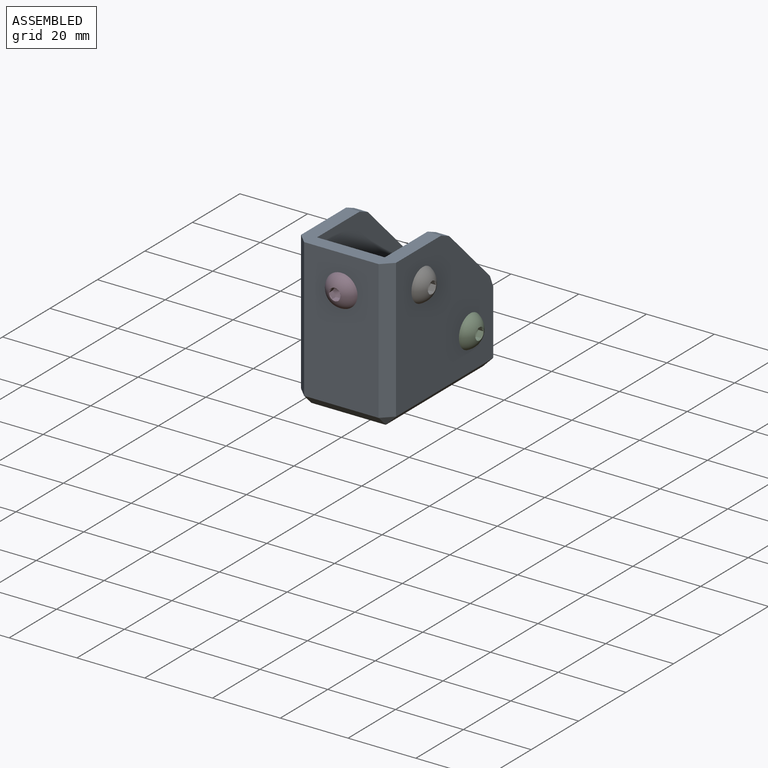
[diagram: assembled view]
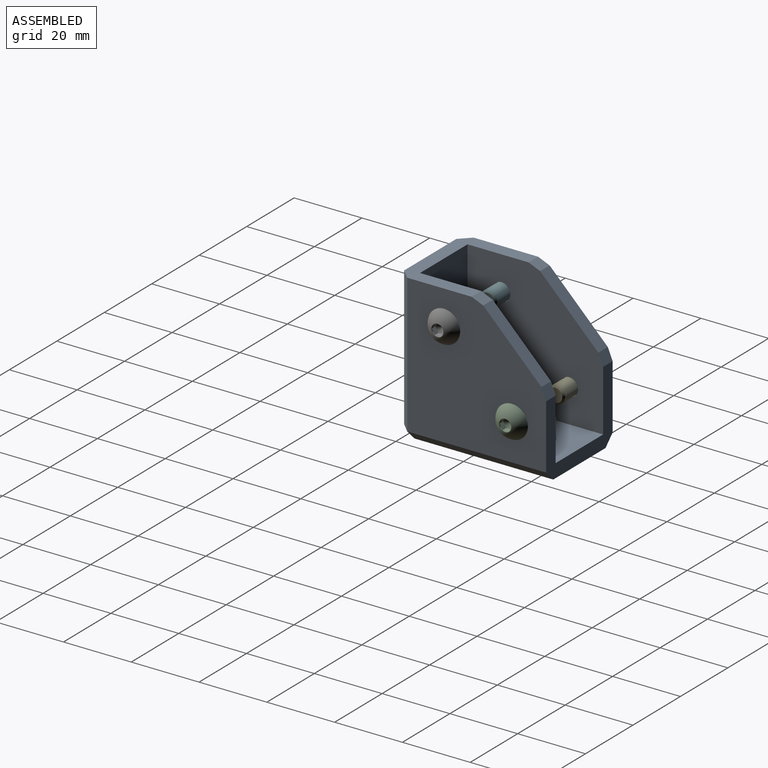
[diagram: assembled view, second angle]
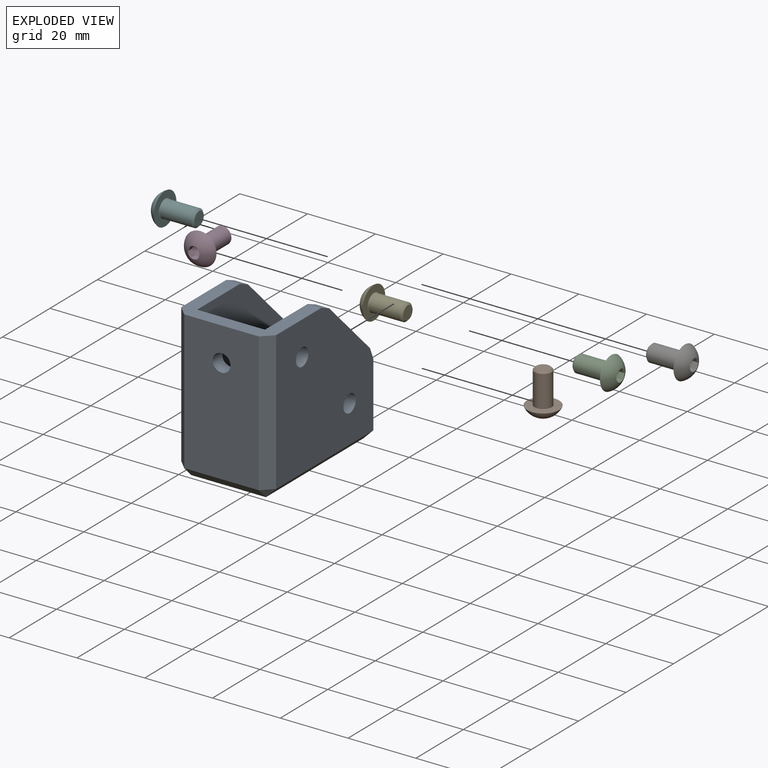
[diagram: exploded view]
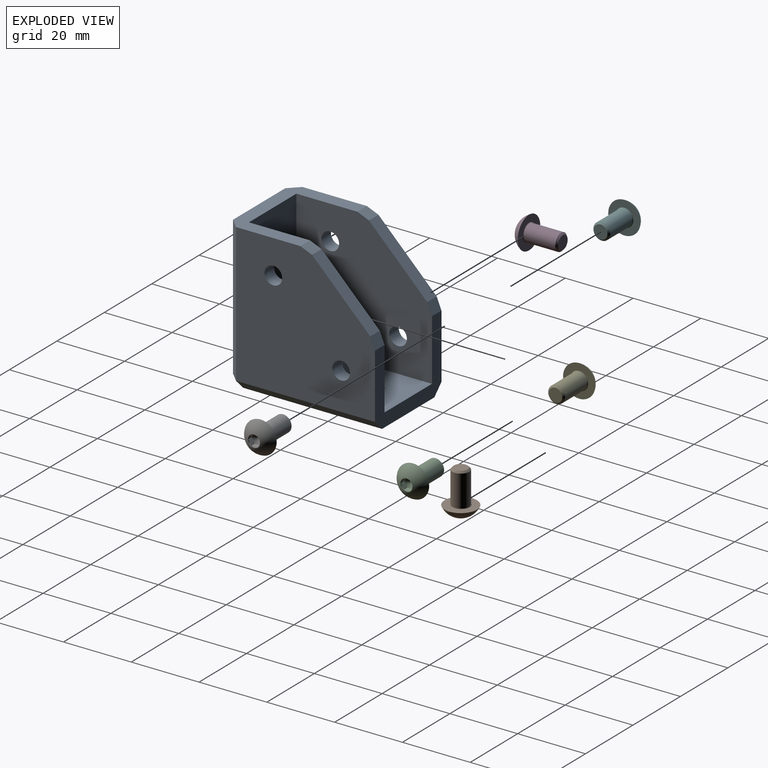
[diagram: exploded view, second angle]
FCSTD DOCUMENT  (FreeCAD 1.0R39285 (Git))
Label: L-mount
License: All rights reserved
objects: App::Link×7, App::FeaturePython×7, Sketcher::SketchObject×4, PartDesign::Pad×4, PartDesign::Chamfer×2, PartDesign::Body×1, Part::FeaturePython×1, Assembly::JointGroup×1, Assembly::AssemblyObject×1
note: 28 computed .brp shape members not serialized (recipe doc carries the construction recipe); baked Part::Feature solids carry a one-line shape summary decoded from their .brp

FEATURE [Sketcher::SketchObject] Sketch
  ArcFitTolerance = 1e-06
  AttachmentSupport = -> [XY_Plane]
  FullyConstrained = true
  MakeInternals = false
  MapMode = 5
  sketch-geometry (7):
    g0: LineSegment StartX=0 StartY=0 StartZ=0 EndX=28 EndY=0 EndZ=0
    g1: LineSegment StartX=28 StartY=0 StartZ=0 EndX=28 EndY=44 EndZ=0
    g2: LineSegment StartX=28 StartY=44 StartZ=0 EndX=0 EndY=44 EndZ=0
    g3: LineSegment StartX=0 StartY=44 StartZ=0 EndX=0 EndY=0 EndZ=0
    g4: LineSegment [constr] StartX=28 StartY=44 StartZ=0 EndX=14 EndY=44 EndZ=0
    g5: LineSegment [constr] StartX=14 StartY=44 StartZ=0 EndX=14 EndY=34 EndZ=0
    g6: Circle CenterX=14 CenterY=34 CenterZ=0 NormalX=0 NormalY=0 NormalZ=1 AngleXU=0 Radius=2.6
  constraints (18):
    c: Coincident(g0,g1)
    c: Coincident(g1,g2)
    c: Coincident(g2,g3)
    c: Coincident(g3,g0)
    c: Horizontal(g0)
    c: Horizontal(g2)
    c: Vertical(g1)
    c: Vertical(g3)
    c: Distance(g1,g3) = 28
    c: Distance(g0,g2) = 44
    c: Coincident(g0,g-1)
    c: Coincident(g4,g1)
    c: Symmetric(g2,g2,g4)
    c: Distance(g5) = 10
    c: Coincident(g5,g4)
    c: Vertical(g5)
    c: Diameter(g6) = 5.2
    c: Coincident(g6,g5)
FEATURE [PartDesign::Pad] Pad
  Direction = (0,0,1)
  Length = 4
  Length2 = 10
  Profile = -> Sketch
  ReferenceAxis = -> Sketch [N_Axis]
  Refine = true
  Suppressed = false
  Type = 0
FEATURE [Sketcher::SketchObject] Sketch001
  ArcFitTolerance = 1e-06
  AttachmentSupport = -> [Pad]
  FullyConstrained = true
  MakeInternals = false
  MapMode = 5
  Placement = pos=(0,0,0) rot=(1,0,0;1.5708rad)
  sketch-geometry (7):
    g0: LineSegment StartX=0 StartY=0 StartZ=0 EndX=28 EndY=0 EndZ=0
    g1: LineSegment StartX=28 StartY=0 StartZ=0 EndX=28 EndY=44 EndZ=0
    g2: LineSegment StartX=28 StartY=44 StartZ=0 EndX=0 EndY=44 EndZ=0
    g3: LineSegment StartX=0 StartY=44 StartZ=0 EndX=0 EndY=0 EndZ=0
    g4: LineSegment [constr] StartX=28 StartY=44 StartZ=0 EndX=14 EndY=44 EndZ=0
    g5: LineSegment [constr] StartX=14 StartY=44 StartZ=0 EndX=14 EndY=34 EndZ=0
    g6: Circle CenterX=14 CenterY=34 CenterZ=0 NormalX=0 NormalY=0 NormalZ=1 AngleXU=0 Radius=2.6
  constraints (18):
    c: Coincident(g0,g1)
    c: Coincident(g1,g2)
    c: Coincident(g2,g3)
    c: Coincident(g3,g0)
    c: Horizontal(g0)
    c: Horizontal(g2)
    c: Vertical(g1)
    c: Vertical(g3)
    c: Distance(g1,g3) = 28
    c: Distance(g0,g2) = 44
    c: Coincident(g0,g-1)
    c: Coincident(g4,g1)
    c: Symmetric(g2,g2,g4)
    c: Distance(g5) = 10
    c: Coincident(g5,g4)
    c: Vertical(g5)
    c: Diameter(g6) = 5.2
    c: Coincident(g6,g5)
FEATURE [PartDesign::Pad] Pad001
  BaseFeature = -> Pad
  Direction = (0,-1,2e-16)
  Length = 4
  Length2 = 10
  Profile = -> Sketch001
  ReferenceAxis = -> Sketch001 [N_Axis]
  Refine = true
  Reversed = true
  Suppressed = false
  Type = 0
FEATURE [Sketcher::SketchObject] Sketch002
  ArcFitTolerance = 1e-06
  AttachmentSupport = -> [Pad001]
  FullyConstrained = true
  MakeInternals = false
  MapMode = 5
  Placement = pos=(0,0,0) rot=(0.57735,-0.57735,-0.57735;2.0944rad)
  sketch-geometry (11):
    g0: LineSegment StartX=0 StartY=0 StartZ=0 EndX=0 EndY=44 EndZ=0
    g1: LineSegment StartX=0 StartY=44 StartZ=0 EndX=-24 EndY=44 EndZ=0
    g2: LineSegment StartX=0 StartY=0 StartZ=0 EndX=-44 EndY=0 EndZ=0
    g3: LineSegment StartX=-44 StartY=0 StartZ=0 EndX=-44 EndY=24 EndZ=0
    g4: LineSegment StartX=-44 StartY=24 StartZ=0 EndX=-24 EndY=44 EndZ=0
    g5: LineSegment [constr] StartX=-24 StartY=44 StartZ=0 EndX=-14 EndY=44 EndZ=0
    g6: LineSegment [constr] StartX=-14 StartY=44 StartZ=0 EndX=-14 EndY=34 EndZ=0
    g7: Circle CenterX=-14 CenterY=34 CenterZ=0 NormalX=0 NormalY=0 NormalZ=1 AngleXU=0 Radius=2.6
    g8: LineSegment [constr] StartX=-44 StartY=24 StartZ=0 EndX=-44 EndY=14 EndZ=0
    g9: LineSegment [constr] StartX=-44 StartY=14 StartZ=0 EndX=-34 EndY=14 EndZ=0
    g10: Circle CenterX=-34 CenterY=14 CenterZ=0 NormalX=0 NormalY=0 NormalZ=1 AngleXU=0 Radius=2.6
  constraints (30):
    c: Distance(g0) = 44
    c: Coincident(g0,g-1)
    c: PointOnObject(g0,g-2)
    c: Distance(g1) = 24
    c: Coincident(g1,g0)
    c: Horizontal(g1)
    c: Distance(g2) = 44
    c: Coincident(g2,g0)
    c: PointOnObject(g2,g-1)
    c: Distance(g3) = 24
    c: Coincident(g3,g2)
    c: Vertical(g3)
    c: Coincident(g4,g3)
    c: Coincident(g4,g1)
    c: Distance(g5) = 10
    c: Coincident(g5,g1)
    c: PointOnObject(g5,g1)
    c: Distance(g6) = 10
    c: Coincident(g6,g5)
    c: Vertical(g6)
    c: Diameter(g7) = 5.2
    c: Coincident(g7,g6)
    c: Distance(g8) = 10
    c: Coincident(g8,g3)
    c: PointOnObject(g8,g3)
    c: Distance(g9) = 10
    c: Coincident(g9,g8)
    c: Horizontal(g9)
    c: Diameter(g10) = 5.2
    c: Coincident(g10,g9)
FEATURE [PartDesign::Pad] Pad002
  BaseFeature = -> Pad001
  Direction = (-1,0,0)
  Length = 4
  Length2 = 10
  Profile = -> Sketch002
  ReferenceAxis = -> Sketch002 [N_Axis]
  Refine = true
  Reversed = true
  Suppressed = false
  Type = 0
FEATURE [Sketcher::SketchObject] Sketch003
  ArcFitTolerance = 1e-06
  AttachmentSupport = -> [Pad002]
  FullyConstrained = true
  MakeInternals = false
  MapMode = 5
  Placement = pos=(28,0,0) rot=(0.57735,0.57735,0.57735;2.0944rad)
  sketch-geometry (11):
    g0: LineSegment StartX=0 StartY=0 StartZ=0 EndX=0 EndY=44 EndZ=0
    g1: LineSegment StartX=0 StartY=0 StartZ=0 EndX=44 EndY=0 EndZ=0
    g2: LineSegment StartX=0 StartY=44 StartZ=0 EndX=24 EndY=44 EndZ=0
    g3: LineSegment StartX=44 StartY=0 StartZ=0 EndX=44 EndY=24 EndZ=0
    g4: LineSegment StartX=24 StartY=44 StartZ=0 EndX=44 EndY=24 EndZ=0
    g5: LineSegment [constr] StartX=44 StartY=24 StartZ=0 EndX=44 EndY=14 EndZ=0
    g6: LineSegment [constr] StartX=44 StartY=14 StartZ=0 EndX=34 EndY=14 EndZ=0
    g7: Circle CenterX=34 CenterY=14 CenterZ=0 NormalX=0 NormalY=0 NormalZ=1 AngleXU=0 Radius=2.6
    g8: LineSegment [constr] StartX=24 StartY=44 StartZ=0 EndX=14 EndY=44 EndZ=0
    g9: LineSegment [constr] StartX=14 StartY=44 StartZ=0 EndX=14 EndY=34 EndZ=0
    g10: Circle CenterX=14 CenterY=34 CenterZ=0 NormalX=0 NormalY=0 NormalZ=1 AngleXU=0 Radius=2.6
  constraints (30):
    c: Distance(g0) = 44
    c: Coincident(g0,g-1)
    c: PointOnObject(g0,g-2)
    c: Distance(g1) = 44
    c: Coincident(g1,g0)
    c: PointOnObject(g1,g-1)
    c: Distance(g2) = 24
    c: Coincident(g2,g0)
    c: Horizontal(g2)
    c: Distance(g3) = 24
    c: Coincident(g3,g1)
    c: Vertical(g3)
    c: Coincident(g4,g2)
    c: Coincident(g4,g3)
    c: Distance(g5) = 10
    c: Coincident(g5,g3)
    c: PointOnObject(g5,g3)
    c: Distance(g6) = 10
    c: Coincident(g6,g5)
    c: Horizontal(g6)
    c: Diameter(g7) = 5.2
    c: Coincident(g7,g6)
    c: Distance(g8) = 10
    c: Coincident(g8,g2)
    c: PointOnObject(g8,g2)
    c: Distance(g9) = 10
    c: Coincident(g9,g8)
    c: Vertical(g9)
    c: Diameter(g10) = 5.2
    c: Coincident(g10,g9)
FEATURE [PartDesign::Pad] Pad003
  BaseFeature = -> Pad002
  Direction = (1,0,0)
  Length = 4
  Length2 = 10
  Profile = -> Sketch003
  ReferenceAxis = -> Sketch003 [N_Axis]
  Refine = true
  Reversed = true
  Suppressed = false
  Type = 0
FEATURE [PartDesign::Chamfer] Chamfer
  Angle = 45
  Base = -> Pad003 [Edge1,Edge46,Edge45,Edge5,Edge42]
  BaseFeature = -> Pad003
  ChamferType = 0
  FlipDirection = false
  Refine = true
  Size = 3
  Size2 = 1
  SupportTransform = false
  Suppressed = false
  UseAllEdges = false
FEATURE [PartDesign::Chamfer] Chamfer001
  Angle = 45
  Base = -> Chamfer [Edge19,Edge26,Edge10,Edge16]
  BaseFeature = -> Chamfer
  ChamferType = 0
  FlipDirection = false
  Refine = true
  Size = 2
  Size2 = 1
  SupportTransform = false
  Suppressed = false
  UseAllEdges = false
FEATURE [PartDesign::Body] Body
  AllowCompound = false
  Group = -> [Sketch,Pad,Sketch001,Pad001,Sketch002,Pad002,Sketch003,Pad003,Chamfer,Chamfer001]
  Origin = -> Origin
  Tip = -> Chamfer001
FEATURE [App::Link] Body001
  LinkedObject = -> Body
FEATURE [Part::FeaturePython] Screw  label="M5x10-Screw"  # WARN: FeaturePython — macro-defined, semantics opaque (R4)
  Diameter = 3
  Invert = false
  LeftHanded = false
  Length = 1
  LengthCustom = 10
  MatchOuter = false
  OffsetAngle = 0
  Placement = pos=(66,0,0) rot=(0,0,1;0rad)
  Thread = false
  Type = 85
FEATURE [App::Link] M5x10_Screw  label="M5x10-Screw001"
  LinkPlacement = pos=(14,34,0) rot=(1,0,0;3.14159rad)
  LinkedObject = -> Screw
  Placement = pos=(14,34,0) rot=(1,0,0;3.14159rad)
FEATURE [App::Link] M5x10_Screw001  label="M5x10-Screw002"
  LinkPlacement = pos=(28.2,34,14) rot=(0.57735,0.57735,0.57735;2.0944rad)
  LinkedObject = -> Screw
  Placement = pos=(28.2,34,14) rot=(0.57735,0.57735,0.57735;2.0944rad)
FEATURE [App::Link] M5x10_Screw002  label="M5x10-Screw003"
  LinkPlacement = pos=(14,0,34) rot=(1,0,0;1.5708rad)
  LinkedObject = -> Screw
  Placement = pos=(14,0,34) rot=(1,0,0;1.5708rad)
FEATURE [App::Link] M5x10_Screw003  label="M5x10-Screw004"
  LinkPlacement = pos=(-0.2,34,14) rot=(0.57735,-0.57735,-0.57735;2.0944rad)
  LinkedObject = -> Screw
  Placement = pos=(-0.2,34,14) rot=(0.57735,-0.57735,-0.57735;2.0944rad)
FEATURE [App::Link] M5x10_Screw004  label="M5x10-Screw005"
  LinkPlacement = pos=(-0.2,14,34) rot=(0.57735,-0.57735,-0.57735;2.0944rad)
  LinkedObject = -> Screw
  Placement = pos=(-0.2,14,34) rot=(0.57735,-0.57735,-0.57735;2.0944rad)
FEATURE [App::Link] M5x10_Screw005  label="M5x10-Screw006"
  LinkPlacement = pos=(28.2,14,34) rot=(0.57735,0.57735,0.57735;2.0944rad)
  LinkedObject = -> Screw
  Placement = pos=(28.2,14,34) rot=(0.57735,0.57735,0.57735;2.0944rad)
FEATURE [App::FeaturePython] GroundedJoint  # Assembly grounded joint (typed FeaturePython)
  ObjectToGround = -> Body001
FEATURE [App::FeaturePython] Joint  label="Fixed"  # Assembly joint (typed FeaturePython)
  Activated = true
  AngleMax = 0
  AngleMin = 0
  Detach1 = false
  Detach2 = false
  Distance = 0
  Distance2 = 0
  EnableAngleMax = false
  EnableAngleMin = false
  EnableLengthMax = false
  EnableLengthMin = false
  JointType = 0 (Fixed)
  LengthMax = 0
  LengthMin = 0
  Placement1 = pos=(0,0,-0.2) rot=(0,0,1;0rad)
  Placement2 = pos=(28,34,14) rot=(0.57735,0.57735,0.57735;2.0944rad)
  Reference1 = -> Assembly [M5x10_Screw001.Edge13,M5x10_Screw001.Edge13]
  Reference2 = -> Assembly [Body001.Edge46,Body001.Edge46]
FEATURE [App::FeaturePython] Joint001  label="Fixed001"  # Assembly joint (typed FeaturePython)
  Activated = true
  AngleMax = 0
  AngleMin = 0
  Detach1 = false
  Detach2 = false
  Distance = 0
  Distance2 = 0
  EnableAngleMax = false
  EnableAngleMin = false
  EnableLengthMax = false
  EnableLengthMin = false
  JointType = 0 (Fixed)
  LengthMax = 0
  LengthMin = 0
  Placement1 = pos=(0,0,-0.2) rot=(0,0,1;0rad)
  Placement2 = pos=(28,14,34) rot=(0.57735,0.57735,0.57735;2.0944rad)
  Reference1 = -> Assembly [M5x10_Screw005.Edge13,M5x10_Screw005.Edge13]
  Reference2 = -> Assembly [Body001.Edge47,Body001.Edge47]
FEATURE [App::FeaturePython] Joint002  label="Fixed002"  # Assembly joint (typed FeaturePython)
  Activated = true
  AngleMax = 0
  AngleMin = 0
  Detach1 = false
  Detach2 = false
  Distance = 0
  Distance2 = 0
  EnableAngleMax = false
  EnableAngleMin = false
  EnableLengthMax = false
  EnableLengthMin = false
  JointType = 0 (Fixed)
  LengthMax = 0
  LengthMin = 0
  Placement2 = pos=(14,34,0) rot=(0,0,1;0rad)
  Reference1 = -> Assembly [M5x10_Screw.Edge5,M5x10_Screw.Edge5]
  Reference2 = -> Assembly [Body001.Edge67,Body001.Edge67]
FEATURE [App::FeaturePython] Joint003  label="Fixed003"  # Assembly joint (typed FeaturePython)
  Activated = true
  AngleMax = 0
  AngleMin = 0
  Detach1 = false
  Detach2 = false
  Distance = 0
  Distance2 = 0
  EnableAngleMax = false
  EnableAngleMin = false
  EnableLengthMax = false
  EnableLengthMin = false
  JointType = 0 (Fixed)
  LengthMax = 0
  LengthMin = 0
  Placement2 = pos=(14,0,34) rot=(1,0,0;1.5708rad)
  Reference1 = -> Assembly [M5x10_Screw002.Edge5,M5x10_Screw002.Edge5]
  Reference2 = -> Assembly [Body001.Edge59,Body001.Edge59]
FEATURE [App::FeaturePython] Joint004  label="Fixed004"  # Assembly joint (typed FeaturePython)
  Activated = true
  AngleMax = 0
  AngleMin = 0
  Detach1 = false
  Detach2 = false
  Distance = 0
  Distance2 = 0
  EnableAngleMax = false
  EnableAngleMin = false
  EnableLengthMax = false
  EnableLengthMin = false
  JointType = 0 (Fixed)
  LengthMax = 0
  LengthMin = 0
  Placement1 = pos=(0,0,-0.2) rot=(0,0,1;0rad)
  Placement2 = pos=(0,34,14) rot=(-0.57735,0.57735,0.57735;4.18879rad)
  Reference1 = -> Assembly [M5x10_Screw003.Edge13,M5x10_Screw003.Edge13]
  Reference2 = -> Assembly [Body001.Edge8,Body001.Edge8]
FEATURE [App::FeaturePython] Joint005  label="Fixed005"  # Assembly joint (typed FeaturePython)
  Activated = true
  AngleMax = 0
  AngleMin = 0
  Detach1 = false
  Detach2 = false
  Distance = 0
  Distance2 = 0
  EnableAngleMax = false
  EnableAngleMin = false
  EnableLengthMax = false
  EnableLengthMin = false
  JointType = 0 (Fixed)
  LengthMax = 0
  LengthMin = 0
  Placement1 = pos=(0,0,-0.2) rot=(0,0,1;0rad)
  Placement2 = pos=(0,14,34) rot=(-0.57735,0.57735,0.57735;4.18879rad)
  Reference1 = -> Assembly [M5x10_Screw004.Edge13,M5x10_Screw004.Edge13]
  Reference2 = -> Assembly [Body001.Edge9,Body001.Edge9]
FEATURE [Assembly::JointGroup] Joints
  Group = -> [GroundedJoint,Joint,Joint001,Joint002,Joint003,Joint004,Joint005]
FEATURE [Assembly::AssemblyObject] Assembly  label="l-mount"
  Group = -> [Joints,Body001,M5x10_Screw,M5x10_Screw001,M5x10_Screw002,M5x10_Screw003,M5x10_Screw004,M5x10_Screw005,GroundedJoint,Joint,Joint001,Joint002,Joint003,Joint004,Joint005]
  Origin = -> Origin001
  Type = Assembly
